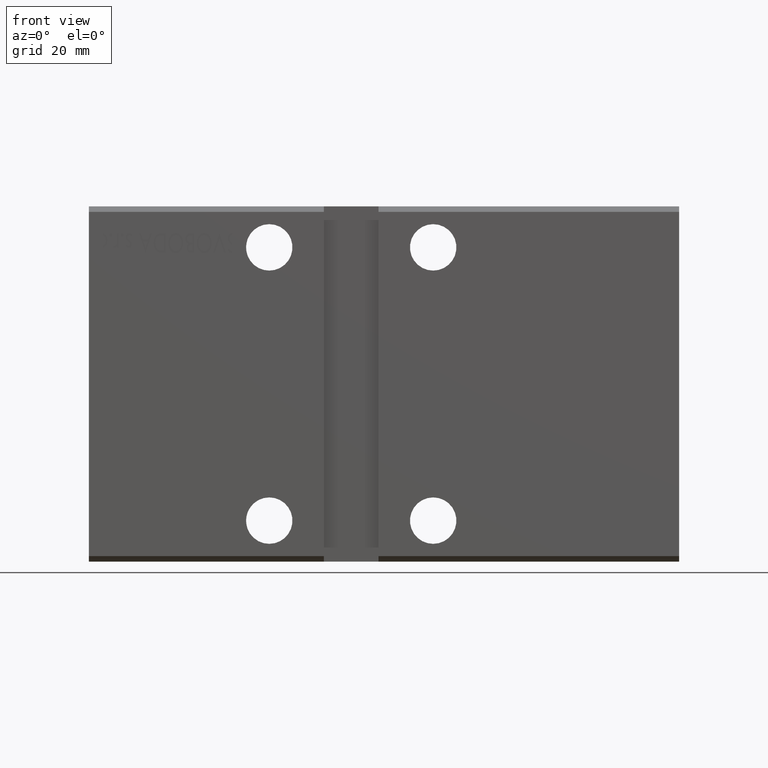
[diagram: clean part render]
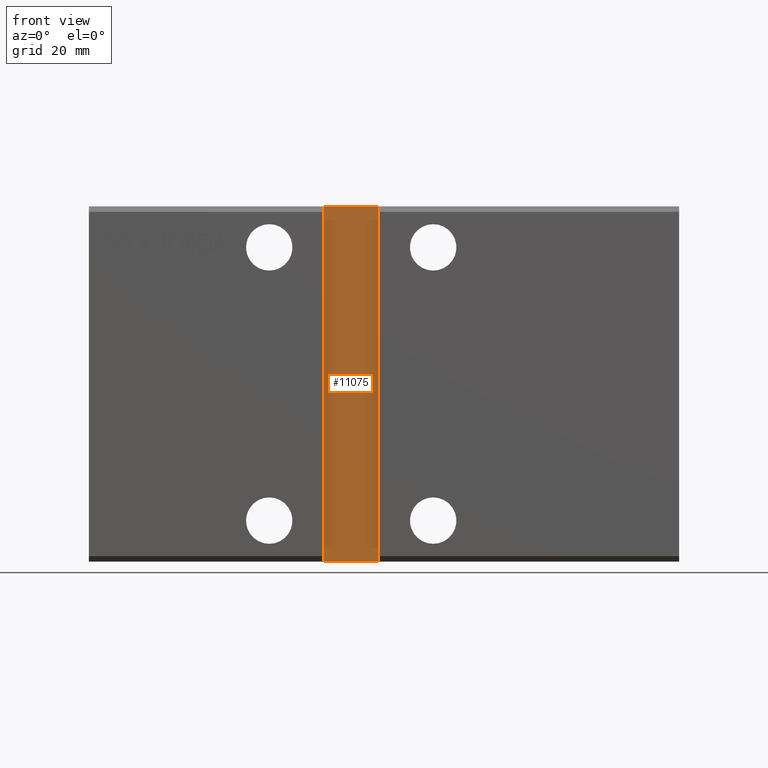
[diagram: same view with one face highlighted and labeled with its STEP entity id]
A machine part, front view. The second image highlights one B-rep face of the part: STEP entity #11075.
In plain terms, the highlighted planar face has unit normal (0, -1, -0).
Its self-contained STEP definition (entity closure, byte-faithful):
#2408 = LINE ( 'NONE', #21836, #36842 ) ;
#2615 = DIRECTION ( 'NONE',  ( 1.000000000000000000, 0.000000000000000000, 0.000000000000000000 ) ) ;
#3415 = CARTESIAN_POINT ( 'NONE',  ( 43.00000000000000711, -20.50000000000001066, -32.50000000000000711 ) ) ;
#3708 = EDGE_CURVE ( 'NONE', #12202, #9371, #2408, .T. ) ;
#4541 = LINE ( 'NONE', #16926, #26492 ) ;
#4952 = CARTESIAN_POINT ( 'NONE',  ( 53.00000000000000000, -20.50000000000001776, 32.50000000000000000 ) ) ;
#5162 = FACE_OUTER_BOUND ( 'NONE', #33431, .T. ) ;
#7247 = ORIENTED_EDGE ( 'NONE', *, *, #8950, .T. ) ;
#7314 = EDGE_CURVE ( 'NONE', #9371, #33821, #4541, .T. ) ;
#7839 = VERTEX_POINT ( 'NONE', #14589 ) ;
#8610 = DIRECTION ( 'NONE',  ( 0.000000000000000000, 1.067522139062650425E-16, -1.000000000000000000 ) ) ;
#8950 = EDGE_CURVE ( 'NONE', #7839, #12202, #27334, .T. ) ;
#9371 = VERTEX_POINT ( 'NONE', #39636 ) ;
#11026 = DIRECTION ( 'NONE',  ( -1.067522139062650425E-16, -1.067522139062650425E-16, 1.000000000000000000 ) ) ;
#11075 = ADVANCED_FACE ( 'NONE', ( #5162 ), #24459, .T. ) ;
#11281 = DIRECTION ( 'NONE',  ( 1.067522139062650425E-16, 1.067522139062650425E-16, -1.000000000000000000 ) ) ;
#11907 = ORIENTED_EDGE ( 'NONE', *, *, #3708, .T. ) ;
#12202 = VERTEX_POINT ( 'NONE', #3415 ) ;
#13569 = VECTOR ( 'NONE', #34314, 1000.000000000000000 ) ;
#14309 = CARTESIAN_POINT ( 'NONE',  ( 0.000000000000000000, -20.50000000000001066, -2.291783639813072381E-15 ) ) ;
#14341 = CARTESIAN_POINT ( 'NONE',  ( 43.00000000000000000, -20.50000000000001776, 32.50000000000000000 ) ) ;
#14589 = CARTESIAN_POINT ( 'NONE',  ( 43.00000000000000000, -20.50000000000001776, 32.50000000000000000 ) ) ;
#16926 = CARTESIAN_POINT ( 'NONE',  ( 53.00000000000000000, -20.50000000000001776, 32.50000000000000000 ) ) ;
#20155 = EDGE_CURVE ( 'NONE', #33821, #7839, #28013, .T. ) ;
#21836 = CARTESIAN_POINT ( 'NONE',  ( 43.00000000000000711, -20.50000000000001066, -32.50000000000000711 ) ) ;
#23162 = ORIENTED_EDGE ( 'NONE', *, *, #20155, .T. ) ;
#24459 = PLANE ( 'NONE',  #39941 ) ;
#26492 = VECTOR ( 'NONE', #11026, 1000.000000000000000 ) ;
#27334 = LINE ( 'NONE', #14341, #31091 ) ;
#28013 = LINE ( 'NONE', #30647, #13569 ) ;
#30647 = CARTESIAN_POINT ( 'NONE',  ( 43.00000000000000000, -20.50000000000001776, 32.50000000000000000 ) ) ;
#31091 = VECTOR ( 'NONE', #11281, 1000.000000000000000 ) ;
#31377 = ORIENTED_EDGE ( 'NONE', *, *, #7314, .T. ) ;
#33431 = EDGE_LOOP ( 'NONE', ( #31377, #23162, #7247, #11907 ) ) ;
#33821 = VERTEX_POINT ( 'NONE', #4952 ) ;
#34314 = DIRECTION ( 'NONE',  ( -1.000000000000000000, -0.000000000000000000, -0.000000000000000000 ) ) ;
#36842 = VECTOR ( 'NONE', #2615, 1000.000000000000000 ) ;
#39636 = CARTESIAN_POINT ( 'NONE',  ( 53.00000000000000711, -20.50000000000001066, -32.50000000000000711 ) ) ;
#39893 = DIRECTION ( 'NONE',  ( 0.000000000000000000, -1.000000000000000000, -1.067522139062650425E-16 ) ) ;
#39941 = AXIS2_PLACEMENT_3D ( 'NONE', #14309, #39893, #8610 ) ;